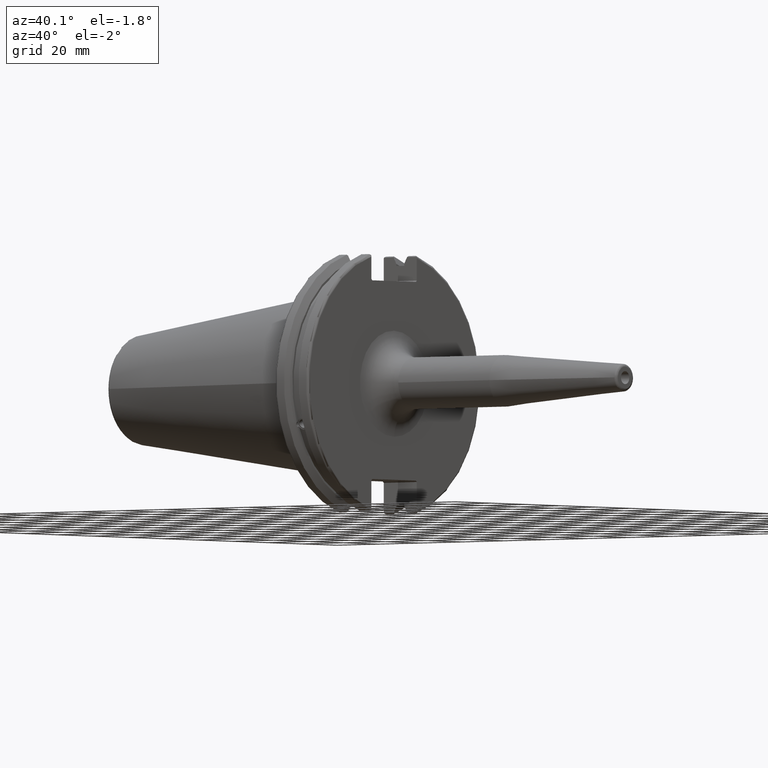
[diagram: clean part render]
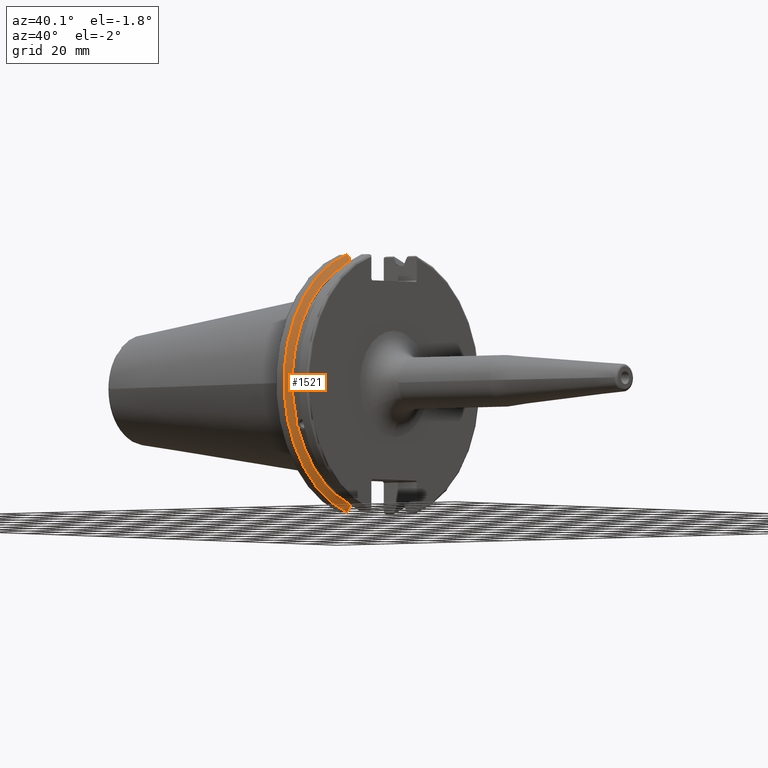
[diagram: same view with one face highlighted and labeled with its STEP entity id]
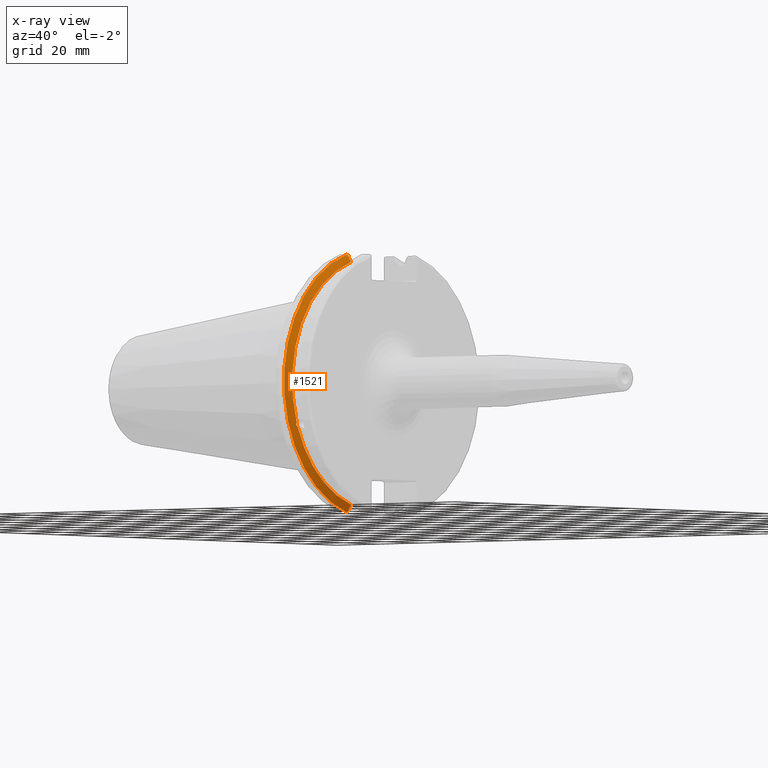
[diagram: x-ray of the same camera — body ghosted, the highlighted face saturated]
A machine part, auxiliary view. The second image highlights one B-rep face of the part: STEP entity #1521.
The next image is the same camera in x-ray: the body ghosted, the highlighted face saturated — about 0% of this face is hidden behind the body in this view.
In plain terms, the highlighted conical surface has half-angle 60 deg.
Its self-contained STEP definition (entity closure, byte-faithful):
#25=(
BOUNDED_CURVE()
B_SPLINE_CURVE(2,(#2877,#2878,#2879),.UNSPECIFIED.,.F.,.F.)
B_SPLINE_CURVE_WITH_KNOTS((3,3),(0.,0.275823910674601),.UNSPECIFIED.)
CURVE()
GEOMETRIC_REPRESENTATION_ITEM()
RATIONAL_B_SPLINE_CURVE((1.,1.00038235573593,1.00012873636487))
REPRESENTATION_ITEM('')
);
#26=(
BOUNDED_CURVE()
B_SPLINE_CURVE(2,(#2889,#2890,#2891),.UNSPECIFIED.,.F.,.F.)
B_SPLINE_CURVE_WITH_KNOTS((3,3),(0.0558332664507492,0.331657177124507),
 .UNSPECIFIED.)
CURVE()
GEOMETRIC_REPRESENTATION_ITEM()
RATIONAL_B_SPLINE_CURVE((1.00012873636807,1.00038235574544,1.))
REPRESENTATION_ITEM('')
);
#27=(
BOUNDED_CURVE()
B_SPLINE_CURVE(2,(#2924,#2925,#2926),.UNSPECIFIED.,.F.,.F.)
B_SPLINE_CURVE_WITH_KNOTS((3,3),(0.,0.0648240472897372),.UNSPECIFIED.)
CURVE()
GEOMETRIC_REPRESENTATION_ITEM()
RATIONAL_B_SPLINE_CURVE((1.,1.00011477674836,1.00019140645948))
REPRESENTATION_ITEM('')
);
#28=(
BOUNDED_CURVE()
B_SPLINE_CURVE(2,(#2932,#2933,#2934),.UNSPECIFIED.,.F.,.F.)
B_SPLINE_CURVE_WITH_KNOTS((3,3),(0.325260944932348,0.390084992222201),
 .UNSPECIFIED.)
CURVE()
GEOMETRIC_REPRESENTATION_ITEM()
RATIONAL_B_SPLINE_CURVE((1.00019140645916,1.00011477674817,1.))
REPRESENTATION_ITEM('')
);
#43=B_SPLINE_CURVE_WITH_KNOTS('',3,(#2413,#2414,#2415,#2416,#2417,#2418,
#2419,#2420,#2421,#2422,#2423,#2424,#2425,#2426),.UNSPECIFIED.,.F.,.F.,
(4,2,2,2,2,2,4),(0.426712868358719,0.441644498666906,0.48031331322313,0.518982127779354,
0.557650942335578,0.596319756891801,0.611251387199988),.UNSPECIFIED.);
#353=CONICAL_SURFACE('',#1701,47.8172386482472,1.0471975511966);
#435=FACE_OUTER_BOUND('',#538,.T.);
#538=EDGE_LOOP('',(#1412,#1413,#1414,#1415,#1416,#1417,#1418,#1419));
#572=CIRCLE('',#1604,46.4219772964944);
#596=CIRCLE('',#1655,49.2125);
#612=CIRCLE('',#1702,46.4219772964944);
#657=VERTEX_POINT('',#2410);
#658=VERTEX_POINT('',#2412);
#675=VERTEX_POINT('',#2503);
#735=VERTEX_POINT('',#2874);
#736=VERTEX_POINT('',#2876);
#739=VERTEX_POINT('',#2888);
#743=VERTEX_POINT('',#2922);
#744=VERTEX_POINT('',#2928);
#819=EDGE_CURVE('',#658,#657,#43,.T.);
#842=EDGE_CURVE('',#658,#675,#572,.T.);
#924=EDGE_CURVE('',#736,#735,#25,.T.);
#930=EDGE_CURVE('',#739,#675,#26,.T.);
#938=EDGE_CURVE('',#743,#735,#27,.T.);
#940=EDGE_CURVE('',#743,#744,#596,.T.);
#941=EDGE_CURVE('',#739,#744,#28,.T.);
#983=EDGE_CURVE('',#736,#657,#612,.T.);
#1412=ORIENTED_EDGE('',*,*,#819,.T.);
#1413=ORIENTED_EDGE('',*,*,#983,.F.);
#1414=ORIENTED_EDGE('',*,*,#924,.T.);
#1415=ORIENTED_EDGE('',*,*,#938,.F.);
#1416=ORIENTED_EDGE('',*,*,#940,.T.);
#1417=ORIENTED_EDGE('',*,*,#941,.F.);
#1418=ORIENTED_EDGE('',*,*,#930,.T.);
#1419=ORIENTED_EDGE('',*,*,#842,.F.);
#1521=ADVANCED_FACE('',(#435),#353,.T.);
#1604=AXIS2_PLACEMENT_3D('',#2504,#1853,#1854);
#1655=AXIS2_PLACEMENT_3D('',#2930,#1997,#1998);
#1701=AXIS2_PLACEMENT_3D('',#3046,#2110,#2111);
#1702=AXIS2_PLACEMENT_3D('',#3047,#2112,#2113);
#1853=DIRECTION('center_axis',(1.,0.,0.));
#1854=DIRECTION('ref_axis',(0.,0.,-1.));
#1997=DIRECTION('center_axis',(1.,0.,0.));
#1998=DIRECTION('ref_axis',(0.,0.,-1.));
#2110=DIRECTION('center_axis',(-1.,0.,0.));
#2111=DIRECTION('ref_axis',(0.,-1.,-1.22464679914735E-16));
#2112=DIRECTION('center_axis',(1.,0.,0.));
#2113=DIRECTION('ref_axis',(0.,0.,-1.));
#2410=CARTESIAN_POINT('',(9.2191,-43.9096390749305,-15.0646464421033));
#2412=CARTESIAN_POINT('',(9.2191,-43.3201030900029,-16.684383248648));
#2413=CARTESIAN_POINT('Ctrl Pts',(9.21910000000001,-43.3201030900029,-16.6843832486479));
#2414=CARTESIAN_POINT('Ctrl Pts',(9.20211843903392,-43.3613106941341,-16.6592273018006));
#2415=CARTESIAN_POINT('Ctrl Pts',(9.18608675403322,-43.4012416983557,-16.6326763251437));
#2416=CARTESIAN_POINT('Ctrl Pts',(9.13238673845037,-43.5391037343221,-16.5325130832406));
#2417=CARTESIAN_POINT('Ctrl Pts',(9.09621610663556,-43.6406982153491,-16.441180795372));
#2418=CARTESIAN_POINT('Ctrl Pts',(9.04690868251975,-43.8110833825827,-16.2291323464527));
#2419=CARTESIAN_POINT('Ctrl Pts',(9.0341,-43.8794096049168,-16.10796730316));
#2420=CARTESIAN_POINT('Ctrl Pts',(9.0341,-43.9675796948952,-15.8657219718732));
#2421=CARTESIAN_POINT('Ctrl Pts',(9.04690868251975,-43.9931221605126,-15.7289849146254));
#2422=CARTESIAN_POINT('Ctrl Pts',(9.09621610663556,-43.9989016655819,-15.4570249042867));
#2423=CARTESIAN_POINT('Ctrl Pts',(9.13238673845037,-43.9797830409458,-15.3217566390708));
#2424=CARTESIAN_POINT('Ctrl Pts',(9.18608675403322,-43.9385582852181,-15.1564111356409));
#2425=CARTESIAN_POINT('Ctrl Pts',(9.20211843903392,-43.9250360001461,-15.1104047527575));
#2426=CARTESIAN_POINT('Ctrl Pts',(9.2191,-43.9096390749305,-15.0646464421033));
#2503=CARTESIAN_POINT('',(9.2191,-12.95,-44.5791147973604));
#2504=CARTESIAN_POINT('Origin',(9.2191,0.,0.));
#2874=CARTESIAN_POINT('',(7.88638960562424,-12.95,46.9780755322918));
#2876=CARTESIAN_POINT('',(9.2191,-12.95,44.5791147973604));
#2877=CARTESIAN_POINT('Ctrl Pts',(9.2191,-12.95,44.5791147973604));
#2878=CARTESIAN_POINT('Ctrl Pts',(8.57020449055857,-12.95,45.7494966802148));
#2879=CARTESIAN_POINT('Ctrl Pts',(7.88638960562424,-12.95,46.9780755322918));
#2888=CARTESIAN_POINT('',(7.88638960562425,-12.95,-46.9780755322918));
#2889=CARTESIAN_POINT('Ctrl Pts',(7.88638960562425,-12.95,-46.9780755322918));
#2890=CARTESIAN_POINT('Ctrl Pts',(8.57020449054166,-12.95,-45.7494966802452));
#2891=CARTESIAN_POINT('Ctrl Pts',(9.2191,-12.95,-44.5791147973604));
#2922=CARTESIAN_POINT('',(7.60799096595127,-13.4317035994433,47.3440544806494));
#2924=CARTESIAN_POINT('Ctrl Pts',(7.60799096595126,-13.4317035994433,47.3440544806494));
#2925=CARTESIAN_POINT('Ctrl Pts',(7.7482689666382,-13.1896660169966,47.1601640966265));
#2926=CARTESIAN_POINT('Ctrl Pts',(7.88638960562424,-12.95,46.9780755322918));
#2928=CARTESIAN_POINT('',(7.60799096595127,-13.4317035994433,-47.3440544806494));
#2930=CARTESIAN_POINT('Origin',(7.60799096595127,0.,0.));
#2932=CARTESIAN_POINT('Ctrl Pts',(7.88638960562425,-12.95,-46.9780755322918));
#2933=CARTESIAN_POINT('Ctrl Pts',(7.74826896663813,-13.1896660169967,-47.1601640966265));
#2934=CARTESIAN_POINT('Ctrl Pts',(7.60799096595127,-13.4317035994434,-47.3440544806494));
#3046=CARTESIAN_POINT('Origin',(8.41354548297563,0.,0.));
#3047=CARTESIAN_POINT('Origin',(9.2191,0.,0.));